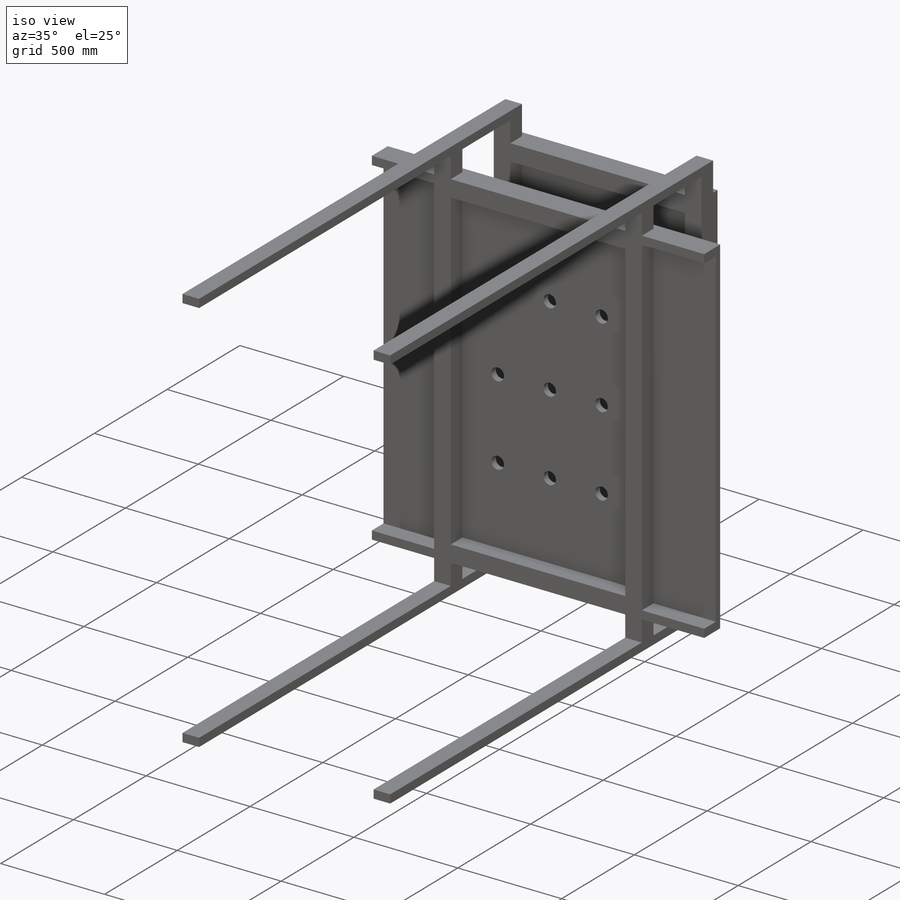
[diagram: iso view]
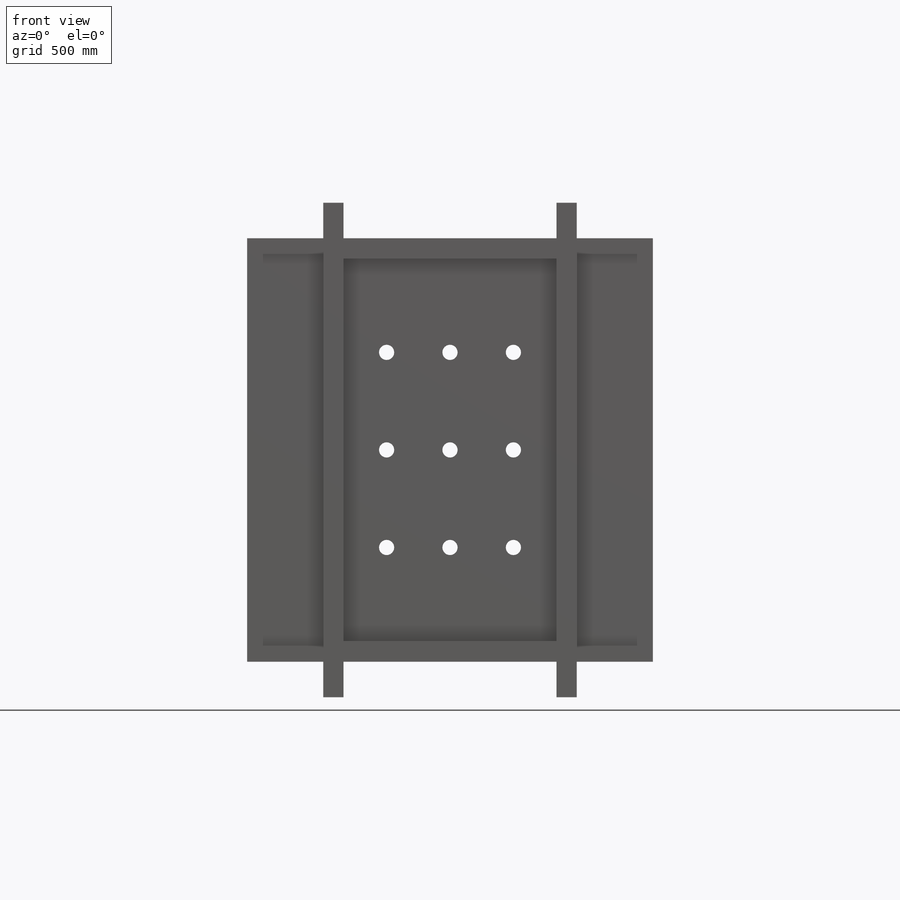
[diagram: front view]
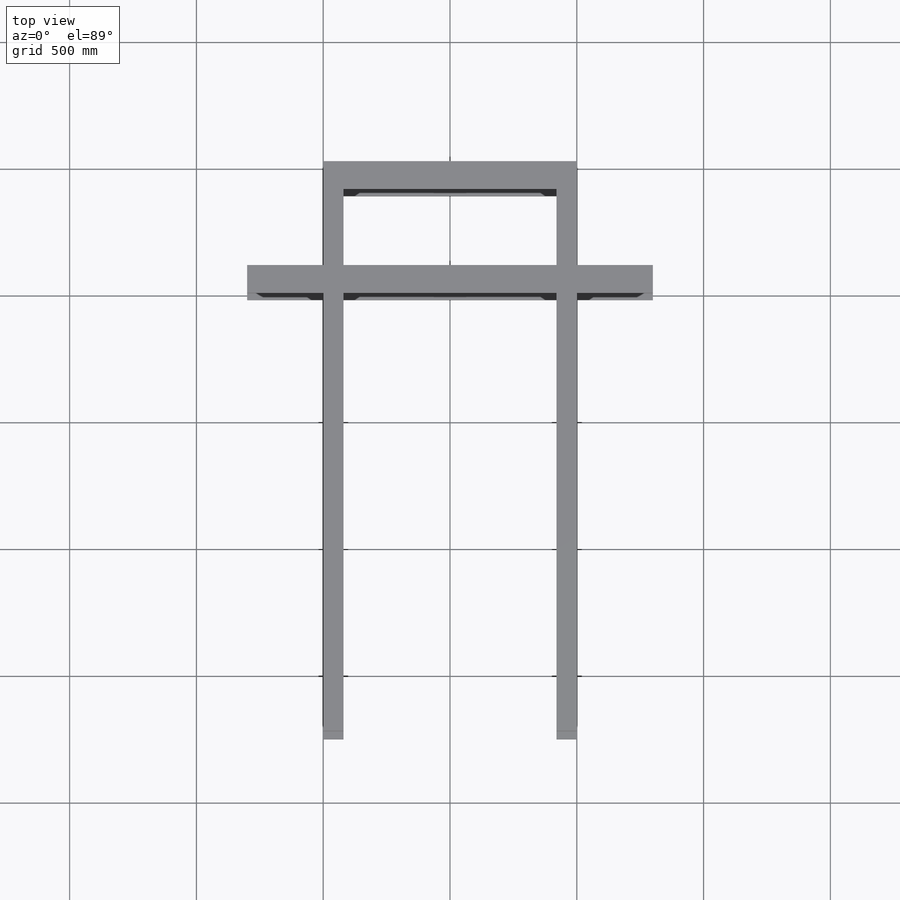
[diagram: top view]
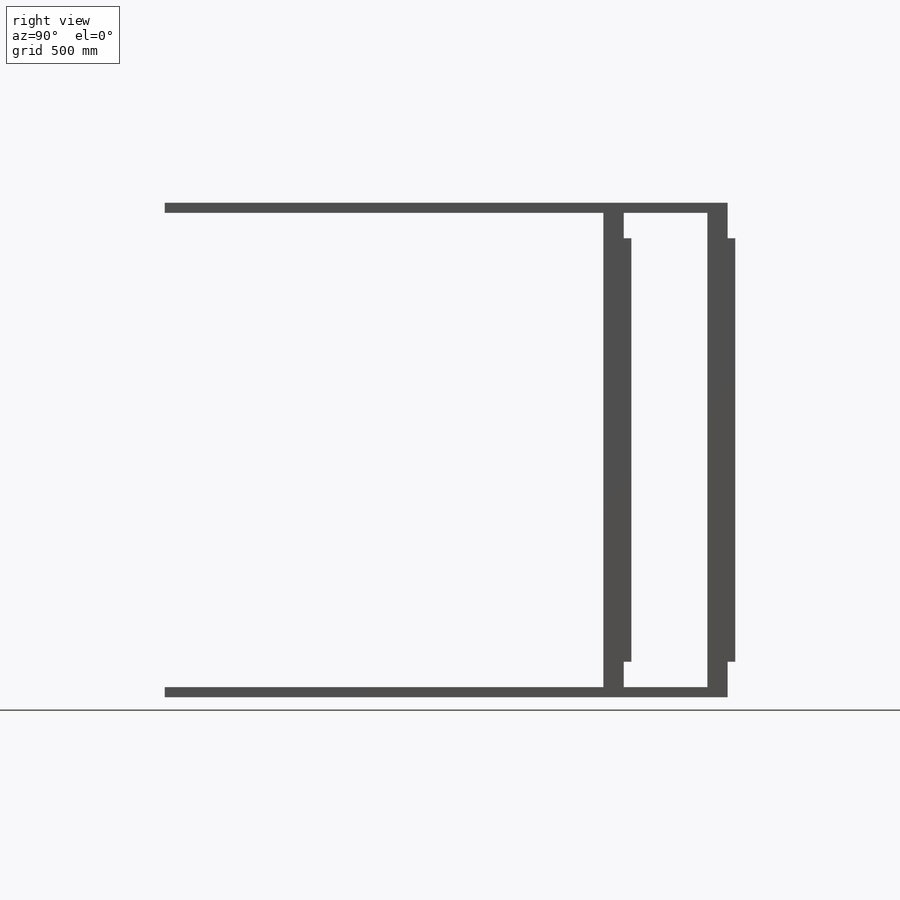
[diagram: right view]
SOLIDWORKS PART (.sldprt)
format: sldprt  version: not decoded by parser v0  size: 458,240 bytes
history: native  units: mm
features: sketch x13, extrude x11, cut_extrude x2, material x1 (+12 scaffold rows collapsed)
feature tree (39):
  scaffold x12  (default folders/planes/origin — collapsed)
  material  "Material <not specified>"
  sketch  "Sketch1"  dims[c1.D1=~75.755626mm c1.D2=~139.701917mm c2.D1=1000.0mm c2.D2=1950.0mm]
  extrude  "Boss-Extrude1"  Depth=30mm
  sketch  "Sketch2"  dims[c1.D1=~109.755168mm c1.D2=~143.600696mm c2.D1=80.0mm c2.D2=40.0mm c2.D3=80.0mm c2.D4=40.0mm c2.D5=80.0mm c2.D6=40.0mm c2.D7=80.0mm c2.D8=40.0mm]
  extrude  "Boss-Extrude2"  Depth=2220mm
  sketch  "Sketch3"  dims[c1.D1=~91.831009mm c1.D2=100.0mm c2.D1=100.0mm c2.D2=100.0mm c2.D3=100.0mm c3.D1=80.0mm]
  extrude  "Boss-Extrude3"  [1 undecoded]
  sketch  "Sketch4"  dims[c1.D1=100.0mm c1.D2=100.0mm c2.D1=100.0mm c2.D2=100.0mm c3.D1=40.0mm]
  extrude  "Boss-Extrude4"  [1 undecoded]
  sketch  "Sketch5"  dims[c1.D1=~122.33362mm c1.D2=100.0mm c2.D1=80.0mm c2.D2=330.0mm c2.D3=100.0mm c2.D4=100.0mm]
  extrude  "Boss-Extrude5"  [1 undecoded]
  sketch  "Sketch6"  dims[c1.D1=1780.0mm c1.D2=1000.0mm c2.D1=10.0mm c2.D2=100.0mm c3.D1=100.0mm]
  extrude  "Boss-Extrude6"  Depth=30mm
  sketch  "Sketch7"  dims[c1.D1=0.0mm c1.D2=~86.687282mm c2.D1=100.0mm c2.D2=~93.320141mm c3.D1=100.0mm c3.D2=100.0mm c4.D1=40.0mm c4.D2=~123.489274mm c4.D3=~123.489274mm c4.D4=100.0mm c5.D2=100.0mm c5.D3=100.0mm c5.D4=100.0mm c6.D2=40.0mm]
  extrude  "Boss-Extrude7"  Depth=300mm
  sketch  "Sketch8"  dims[D1=1980.0mm D2=300.0mm]
  extrude  "Boss-Extrude9"  Depth=30mm
  sketch  "Sketch9"  dims[c1.D1=140.0mm c1.D2=1000.0mm c2.D1=140.0mm c2.D2=1000.0mm]
  cut_extrude  "Cut-Extrude1"  [1 undecoded]
  sketch  "Sketch11"  dims[c1.D1=~50.330436mm c1.D2=~44.689313mm c2.D1=~50.330436mm c2.D2=40.0mm c3.D1=80.0mm c3.D2=~55.880874mm c3.D3=40.0mm c4.D2=~81.156463mm c4.D3=40.0mm c5.D2=80.0mm]
  extrude  "Boss-Extrude10"  [1 undecoded]
  sketch  "Sketch12"  dims[D1=1670.0mm D2=30.0mm]
  extrude  "Boss-Extrude11"  Depth=300mm
  sketch  "Sketch13"  dims[c1.D1=~78.969114mm c1.D2=40.0mm c2.D1=~101.687905mm c2.D2=40.0mm c3.D1=40.0mm c3.D2=40.0mm]
  extrude  "Boss-Extrude12"  Depth=300mm
  sketch  "Sketch14"  dims[c1.D1=60.0mm c1.D6=60.0mm c1.D2=450.0mm c1.D3=250.0mm c1.D4=840.0mm c2.D3=250.0mm c2.D6=450.0mm c2.D7=250.0mm c2.D4=3.0 c2.D5=3.0]
  cut_extrude  "Cut-Extrude2"  [1 undecoded]
decode coverage: 20 of 26 modeling features carry decoded parameters
note: ~ marks probable driven/reference dimensions
note: 6 parameter values undecoded
summary: no parameter record found for 6 features
note: suppression state not decoded; provenance and decode notes live in map.json
